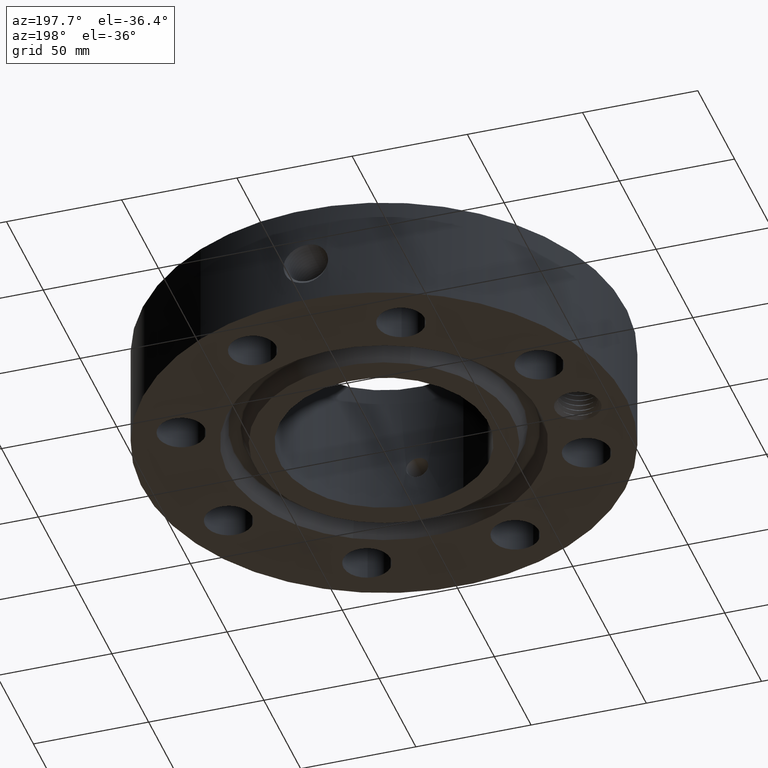
[diagram: clean part render]
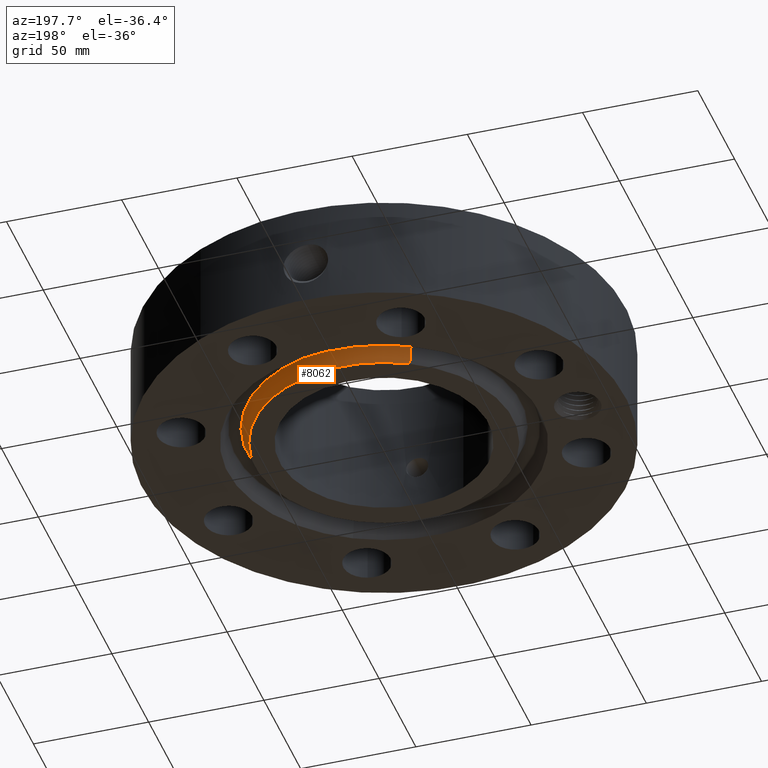
[diagram: same view with one face highlighted and labeled with its STEP entity id]
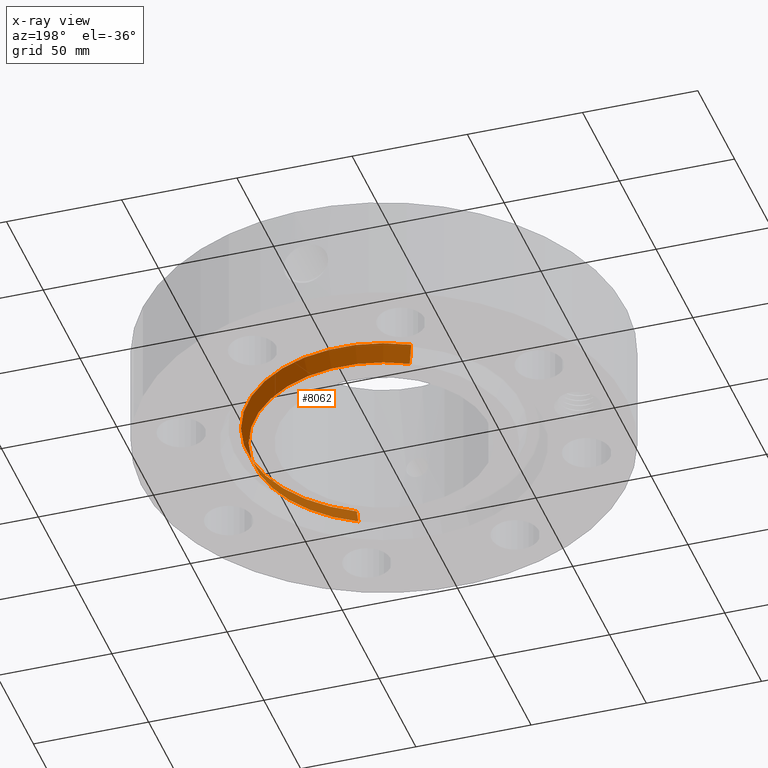
[diagram: x-ray of the same camera — body ghosted, the highlighted face saturated]
A machine part, auxiliary view. The second image highlights one B-rep face of the part: STEP entity #8062.
The next image is the same camera in x-ray: the body ghosted, the highlighted face saturated — about 0% of this face is hidden behind the body in this view.
In plain terms, the highlighted conical surface has half-angle 23 deg.
Its self-contained STEP definition (entity closure, byte-faithful):
#4549=AXIS2_PLACEMENT_3D('Circle Axis2P3D',#4547,#4548,$) ;
#8023=AXIS2_PLACEMENT_3D('Cone Axis2P3D',#8020,#8021,#8022) ;
#8053=AXIS2_PLACEMENT_3D('Circle Axis2P3D',#8051,#8052,$) ;
#4525=CARTESIAN_POINT('Vertex',(-1.11602758514,2.0428747917,0.294112664984)) ;
#4532=CARTESIAN_POINT('Vertex',(1.11602758514,-2.0428747917,0.294112664984)) ;
#4547=CARTESIAN_POINT('Axis2P3D Location',(0.,0.,0.294112664984)) ;
#8020=CARTESIAN_POINT('Axis2P3D Location',(0.,0.,-0.0600000000002)) ;
#8025=CARTESIAN_POINT('Line Origine',(1.08610102335,-1.98809458777,0.147056332492)) ;
#8029=CARTESIAN_POINT('Vertex',(1.05617446155,-1.93331438385,0.)) ;
#8032=CARTESIAN_POINT('Line Origine',(-1.08610102335,1.98809458777,0.147056332492)) ;
#8036=CARTESIAN_POINT('Vertex',(-1.05617446155,1.93331438385,-3.49676543189E-017)) ;
#8051=CARTESIAN_POINT('Axis2P3D Location',(0.,0.,0.)) ;
#4548=DIRECTION('Axis2P3D Direction',(0.,0.,0.0393700787402)) ;
#8021=DIRECTION('Axis2P3D Direction',(0.,0.,0.0393700787402)) ;
#8022=DIRECTION('Axis2P3D XDirection',(0.0188750212049,-0.0345504945626,0.)) ;
#8026=DIRECTION('Vector Direction',(0.00737505833565,-0.0134999537303,0.0362403485611)) ;
#8033=DIRECTION('Vector Direction',(-0.00737505833565,0.0134999537303,0.0362403485611)) ;
#8052=DIRECTION('Axis2P3D Direction',(0.,0.,0.0393700787402)) ;
#8027=VECTOR('Line Direction',#8026,0.0393700787402) ;
#8034=VECTOR('Line Direction',#8033,0.0393700787402) ;
#8057=ORIENTED_EDGE('',*,*,#8038,.F.) ;
#8058=ORIENTED_EDGE('',*,*,#4551,.F.) ;
#8059=ORIENTED_EDGE('',*,*,#8031,.T.) ;
#8060=ORIENTED_EDGE('',*,*,#8055,.F.) ;
#8062=ADVANCED_FACE('PartBody',(#8061),#8024,.T.) ;
#4550=CIRCLE('generated circle',#4549,2.32784341942) ;
#8054=CIRCLE('generated circle',#8053,2.20300000001) ;
#8024=CONICAL_SURFACE('Cone',#8023,2.17753151104,0.401425727959) ;
#4551=EDGE_CURVE('',#4533,#4526,#4550,.T.) ;
#8031=EDGE_CURVE('',#4533,#8030,#8028,.F.) ;
#8038=EDGE_CURVE('',#4526,#8037,#8035,.F.) ;
#8055=EDGE_CURVE('',#8037,#8030,#8054,.F.) ;
#8056=EDGE_LOOP('',(#8057,#8058,#8059,#8060)) ;
#8061=FACE_OUTER_BOUND('',#8056,.T.) ;
#8028=LINE('Line',#8025,#8027) ;
#8035=LINE('Line',#8032,#8034) ;
#4526=VERTEX_POINT('',#4525) ;
#4533=VERTEX_POINT('',#4532) ;
#8030=VERTEX_POINT('',#8029) ;
#8037=VERTEX_POINT('',#8036) ;